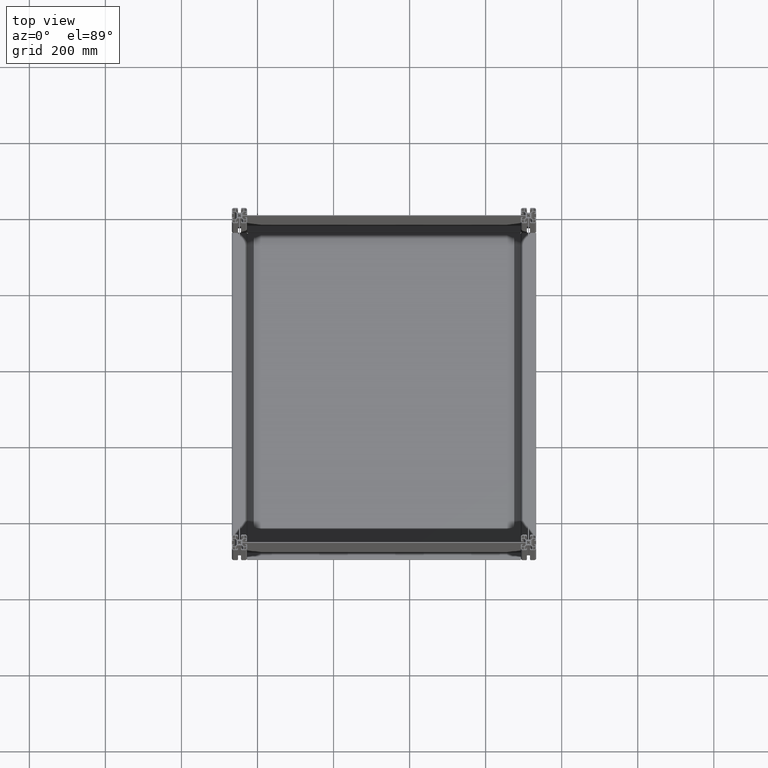
[diagram: clean part render]
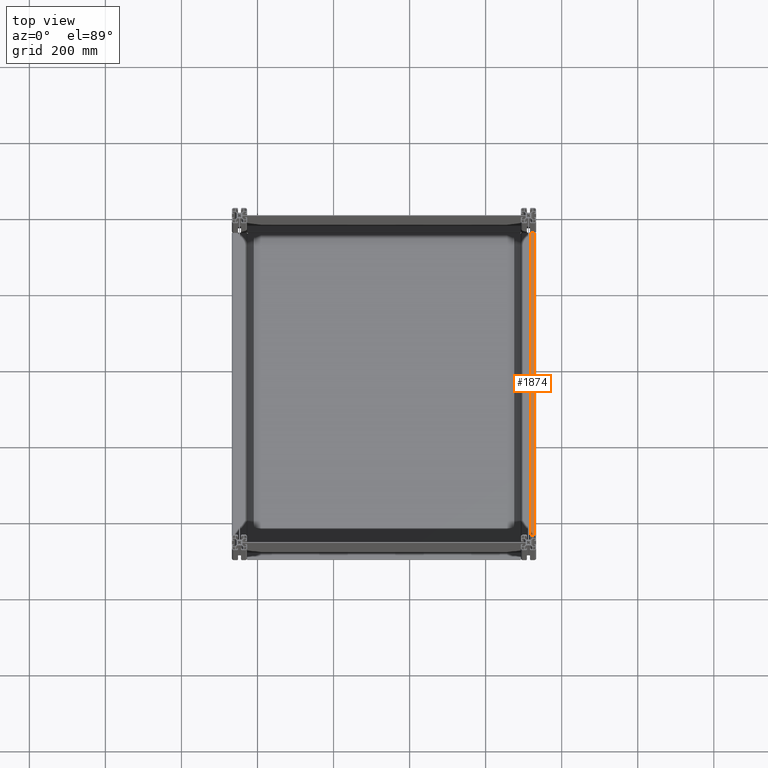
[diagram: same view with one face highlighted and labeled with its STEP entity id]
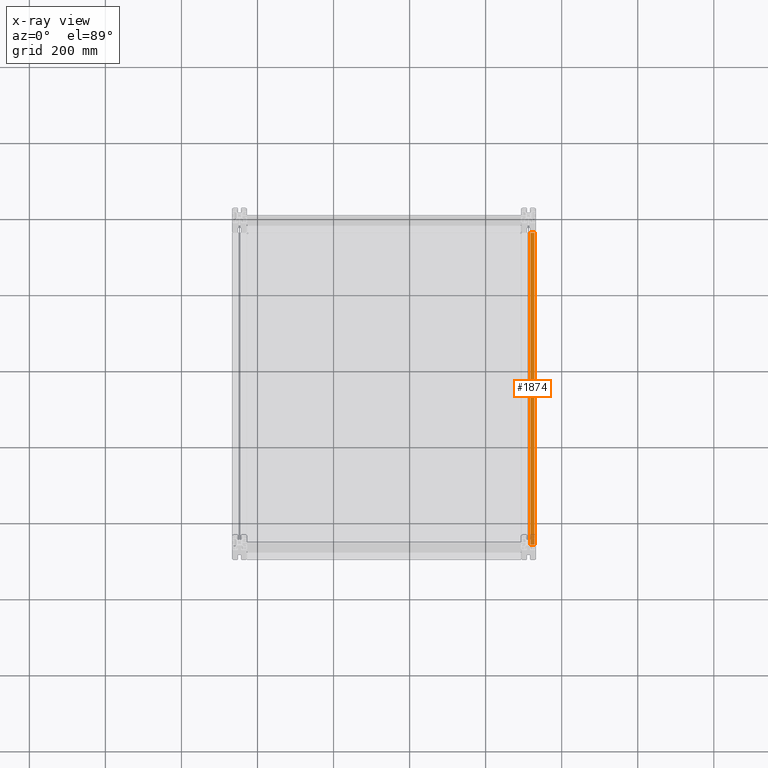
[diagram: x-ray of the same camera — body ghosted, the highlighted face saturated]
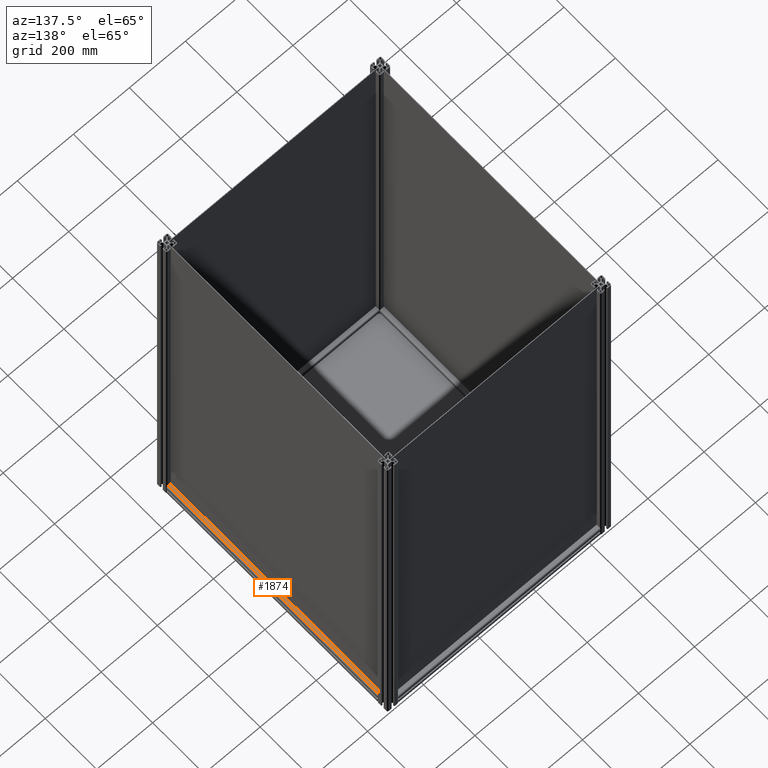
[diagram: same view with one face highlighted and labeled with its STEP entity id]
A machine part, top view. The second image highlights one B-rep face of the part: STEP entity #1874.
The next image is the same camera in x-ray: the body ghosted, the highlighted face saturated — about 3% of this face is hidden behind the body in this view.
A second angle (auxiliary view) of the same face is appended — the face is thin or edge-on in the first view.
In plain terms, the highlighted planar face has unit normal (0, 0, -1).
Its self-contained STEP definition (entity closure, byte-faithful):
#457 = DIRECTION ( 'NONE',  ( -1.000000000000000000, 0.000000000000000000, 0.000000000000000000 ) ) ;
#1293 = CARTESIAN_POINT ( 'NONE',  ( 15.50000000000000000, 20.00000000000180123, -220.0000000000000000 ) ) ;
#1364 = DIRECTION ( 'NONE',  ( 0.000000000000000000, 0.000000000000000000, -1.000000000000000000 ) ) ;
#1874 = ADVANCED_FACE ( 'NONE', ( #6952 ), #8106, .F. ) ;
#1876 = EDGE_CURVE ( 'NONE', #6930, #13500, #12264, .T. ) ;
#2942 = EDGE_LOOP ( 'NONE', ( #12812, #6230, #9048, #9654 ) ) ;
#3059 = CARTESIAN_POINT ( 'NONE',  ( 15.50000000000000000, 20.00000000000180123, 800.0000000000000000 ) ) ;
#3586 = LINE ( 'NONE', #9069, #14857 ) ;
#5694 = VERTEX_POINT ( 'NONE', #13961 ) ;
#6230 = ORIENTED_EDGE ( 'NONE', *, *, #14240, .F. ) ;
#6413 = DIRECTION ( 'NONE',  ( 1.000000000000000000, 0.000000000000000000, 0.000000000000000000 ) ) ;
#6451 = VECTOR ( 'NONE', #457, 1000.000000000000000 ) ;
#6596 = DIRECTION ( 'NONE',  ( 0.000000000000000000, 0.000000000000000000, 1.000000000000000000 ) ) ;
#6810 = CARTESIAN_POINT ( 'NONE',  ( 5.100000000000370903, 20.00000000000180123, 600.0000000000000000 ) ) ;
#6867 = AXIS2_PLACEMENT_3D ( 'NONE', #3059, #14537, #1364 ) ;
#6930 = VERTEX_POINT ( 'NONE', #13809 ) ;
#6952 = FACE_OUTER_BOUND ( 'NONE', #2942, .T. ) ;
#7814 = VECTOR ( 'NONE', #6413, 1000.000000000000000 ) ;
#8106 = PLANE ( 'NONE',  #6867 ) ;
#9048 = ORIENTED_EDGE ( 'NONE', *, *, #10586, .F. ) ;
#9069 = CARTESIAN_POINT ( 'NONE',  ( 5.100000000000360245, 20.00000000000180123, 800.0000000000000000 ) ) ;
#9117 = CARTESIAN_POINT ( 'NONE',  ( 5.100000000000370903, 20.00000000000180123, -220.0000000000000000 ) ) ;
#9654 = ORIENTED_EDGE ( 'NONE', *, *, #11080, .T. ) ;
#10094 = VECTOR ( 'NONE', #13412, 1000.000000000000000 ) ;
#10577 = VERTEX_POINT ( 'NONE', #1293 ) ;
#10586 = EDGE_CURVE ( 'NONE', #5694, #10577, #13264, .T. ) ;
#11080 = EDGE_CURVE ( 'NONE', #5694, #13500, #3586, .T. ) ;
#12085 = CARTESIAN_POINT ( 'NONE',  ( 15.50000000000000000, 20.00000000000180123, 600.0000000000000000 ) ) ;
#12264 = LINE ( 'NONE', #12085, #6451 ) ;
#12812 = ORIENTED_EDGE ( 'NONE', *, *, #1876, .F. ) ;
#13264 = LINE ( 'NONE', #9117, #7814 ) ;
#13412 = DIRECTION ( 'NONE',  ( 0.000000000000000000, 0.000000000000000000, 1.000000000000000000 ) ) ;
#13500 = VERTEX_POINT ( 'NONE', #6810 ) ;
#13809 = CARTESIAN_POINT ( 'NONE',  ( 15.50000000000000000, 20.00000000000180123, 600.0000000000000000 ) ) ;
#13961 = CARTESIAN_POINT ( 'NONE',  ( 5.100000000000370903, 20.00000000000180123, -220.0000000000000000 ) ) ;
#14240 = EDGE_CURVE ( 'NONE', #10577, #6930, #15560, .T. ) ;
#14537 = DIRECTION ( 'NONE',  ( 0.000000000000000000, -1.000000000000000000, 0.000000000000000000 ) ) ;
#14683 = CARTESIAN_POINT ( 'NONE',  ( 15.50000000000000000, 20.00000000000180123, 800.0000000000000000 ) ) ;
#14857 = VECTOR ( 'NONE', #6596, 1000.000000000000000 ) ;
#15560 = LINE ( 'NONE', #14683, #10094 ) ;